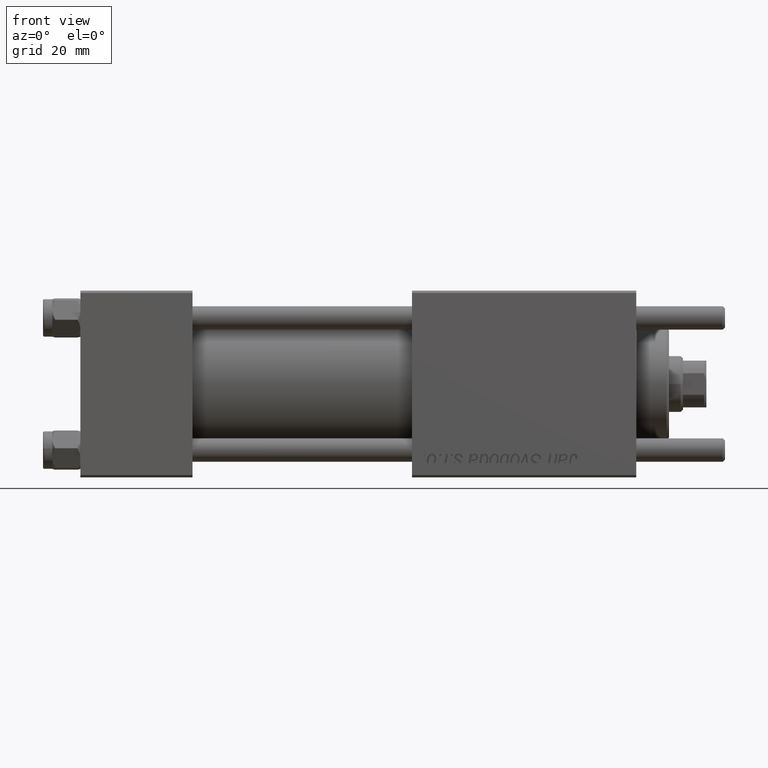
[diagram: clean part render]
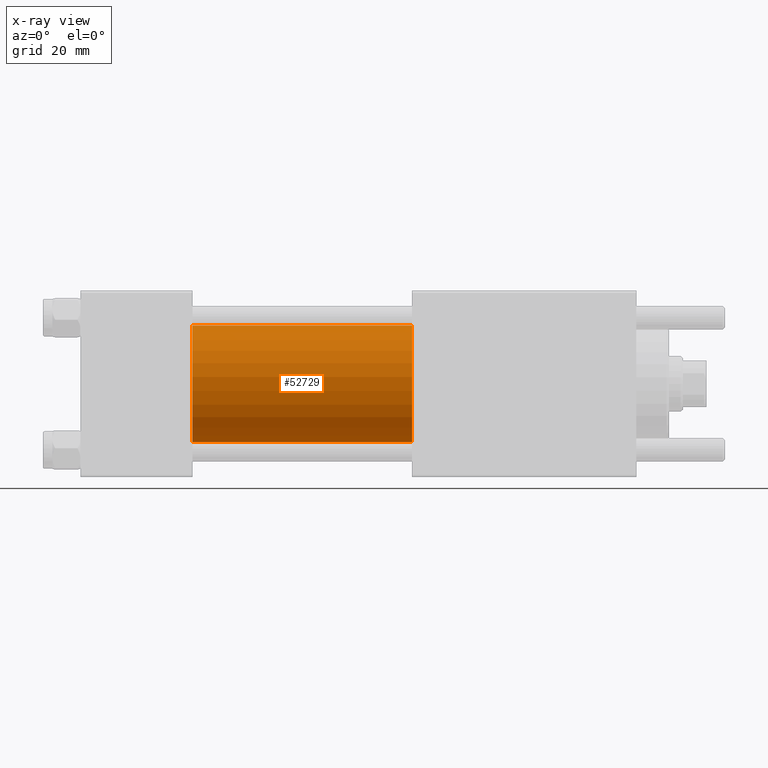
[diagram: x-ray — body ghosted, one internal face saturated and labeled with its STEP entity id]
A machine part, front view, then the same camera in x-ray: the body is ghosted and one INTERNAL B-rep face — a face not visible from any outside direction — is saturated and labeled: STEP entity #52729.
In plain terms, the highlighted cylindrical surface (partial cylindrical patch) has radius 12.5 mm, axis along (-1, -0, -0).
Its self-contained STEP definition (entity closure, byte-faithful):
#1337 = CARTESIAN_POINT ( 'NONE',  ( 71.00000000000001421, -2.602085213965210642E-15, 12.49999999999999645 ) ) ;
#2799 = EDGE_CURVE ( 'NONE', #32742, #15072, #26462, .T. ) ;
#3043 = DIRECTION ( 'NONE',  ( 1.000000000000000000, 0.000000000000000000, 0.000000000000000000 ) ) ;
#3794 = EDGE_LOOP ( 'NONE', ( #54371, #14477, #16547, #46478 ) ) ;
#6460 = AXIS2_PLACEMENT_3D ( 'NONE', #54701, #3043, #33197 ) ;
#6575 = DIRECTION ( 'NONE',  ( -1.000000000000000000, -0.000000000000000000, -0.000000000000000000 ) ) ;
#7830 = EDGE_CURVE ( 'NONE', #42368, #54425, #26627, .T. ) ;
#8015 = DIRECTION ( 'NONE',  ( 0.000000000000000000, 0.000000000000000000, 1.000000000000000000 ) ) ;
#11462 = CARTESIAN_POINT ( 'NONE',  ( 71.00000000000001421, -1.071276715031019515E-15, -12.49999999999999645 ) ) ;
#11893 = CARTESIAN_POINT ( 'NONE',  ( 24.00000000000000000, -2.602085213965210642E-15, 12.49999999999999645 ) ) ;
#14477 = ORIENTED_EDGE ( 'NONE', *, *, #34168, .T. ) ;
#15072 = VERTEX_POINT ( 'NONE', #36287 ) ;
#15306 = CARTESIAN_POINT ( 'NONE',  ( 71.00000000000001421, -2.602085213965210642E-15, 0.000000000000000000 ) ) ;
#16547 = ORIENTED_EDGE ( 'NONE', *, *, #7830, .F. ) ;
#16902 = DIRECTION ( 'NONE',  ( -1.000000000000000000, -0.000000000000000000, -0.000000000000000000 ) ) ;
#24326 = LINE ( 'NONE', #33237, #41651 ) ;
#25660 = EDGE_CURVE ( 'NONE', #32742, #42368, #24326, .T. ) ;
#26230 = AXIS2_PLACEMENT_3D ( 'NONE', #51342, #16902, #8015 ) ;
#26462 = CIRCLE ( 'NONE', #31066, 12.49999999999999645 ) ;
#26627 = CIRCLE ( 'NONE', #6460, 12.49999999999999645 ) ;
#29060 = VECTOR ( 'NONE', #6575, 1000.000000000000000 ) ;
#29538 = FACE_OUTER_BOUND ( 'NONE', #3794, .T. ) ;
#31066 = AXIS2_PLACEMENT_3D ( 'NONE', #15306, #34504, #33937 ) ;
#32425 = LINE ( 'NONE', #11462, #29060 ) ;
#32742 = VERTEX_POINT ( 'NONE', #1337 ) ;
#33197 = DIRECTION ( 'NONE',  ( 0.000000000000000000, 0.000000000000000000, -1.000000000000000000 ) ) ;
#33237 = CARTESIAN_POINT ( 'NONE',  ( 71.00000000000001421, -2.602085213965210642E-15, 12.49999999999999645 ) ) ;
#33937 = DIRECTION ( 'NONE',  ( 0.000000000000000000, 0.000000000000000000, -1.000000000000000000 ) ) ;
#34168 = EDGE_CURVE ( 'NONE', #15072, #54425, #32425, .T. ) ;
#34504 = DIRECTION ( 'NONE',  ( 1.000000000000000000, 0.000000000000000000, 0.000000000000000000 ) ) ;
#36287 = CARTESIAN_POINT ( 'NONE',  ( 71.00000000000001421, -1.071276715031019515E-15, -12.49999999999999645 ) ) ;
#37544 = DIRECTION ( 'NONE',  ( -1.000000000000000000, -0.000000000000000000, -0.000000000000000000 ) ) ;
#41651 = VECTOR ( 'NONE', #37544, 1000.000000000000000 ) ;
#42368 = VERTEX_POINT ( 'NONE', #11893 ) ;
#46478 = ORIENTED_EDGE ( 'NONE', *, *, #25660, .F. ) ;
#51342 = CARTESIAN_POINT ( 'NONE',  ( 71.00000000000001421, -2.602085213965210642E-15, 0.000000000000000000 ) ) ;
#52729 = ADVANCED_FACE ( 'NONE', ( #29538 ), #55634, .F. ) ;
#53927 = CARTESIAN_POINT ( 'NONE',  ( 24.00000000000000000, -1.071276715031019515E-15, -12.49999999999999645 ) ) ;
#54371 = ORIENTED_EDGE ( 'NONE', *, *, #2799, .T. ) ;
#54425 = VERTEX_POINT ( 'NONE', #53927 ) ;
#54701 = CARTESIAN_POINT ( 'NONE',  ( 24.00000000000000000, -2.602085213965210642E-15, 0.000000000000000000 ) ) ;
#55634 = CYLINDRICAL_SURFACE ( 'NONE', #26230, 12.49999999999999645 ) ;